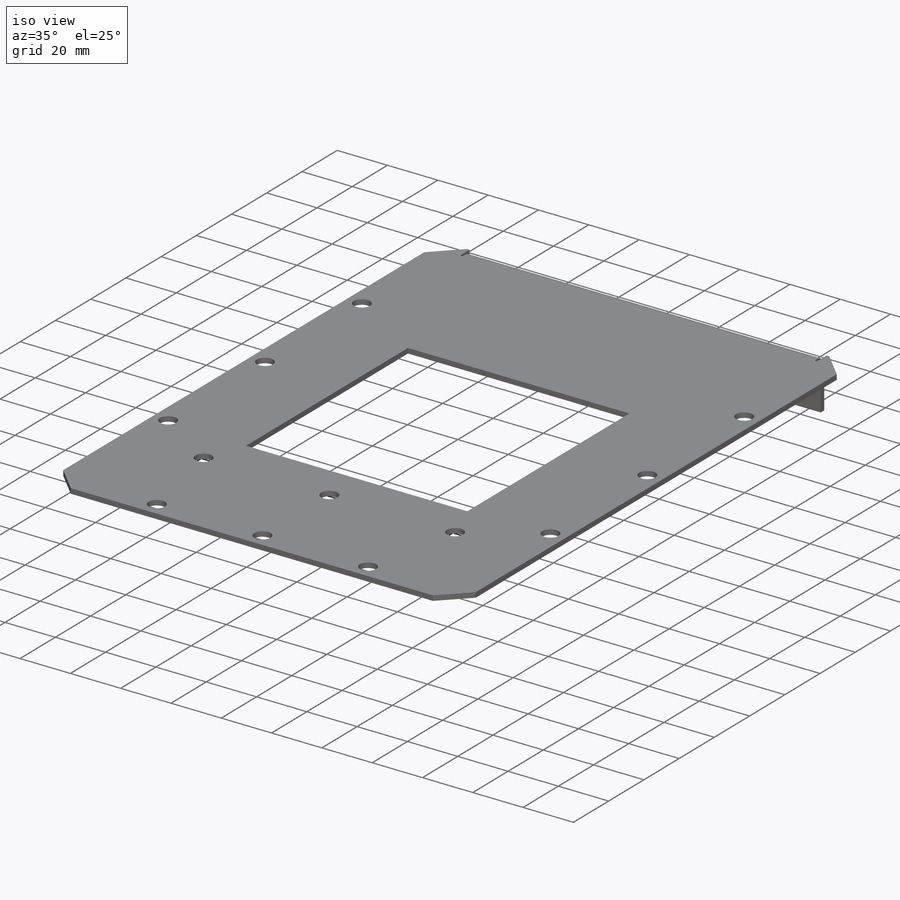
[diagram: iso view]
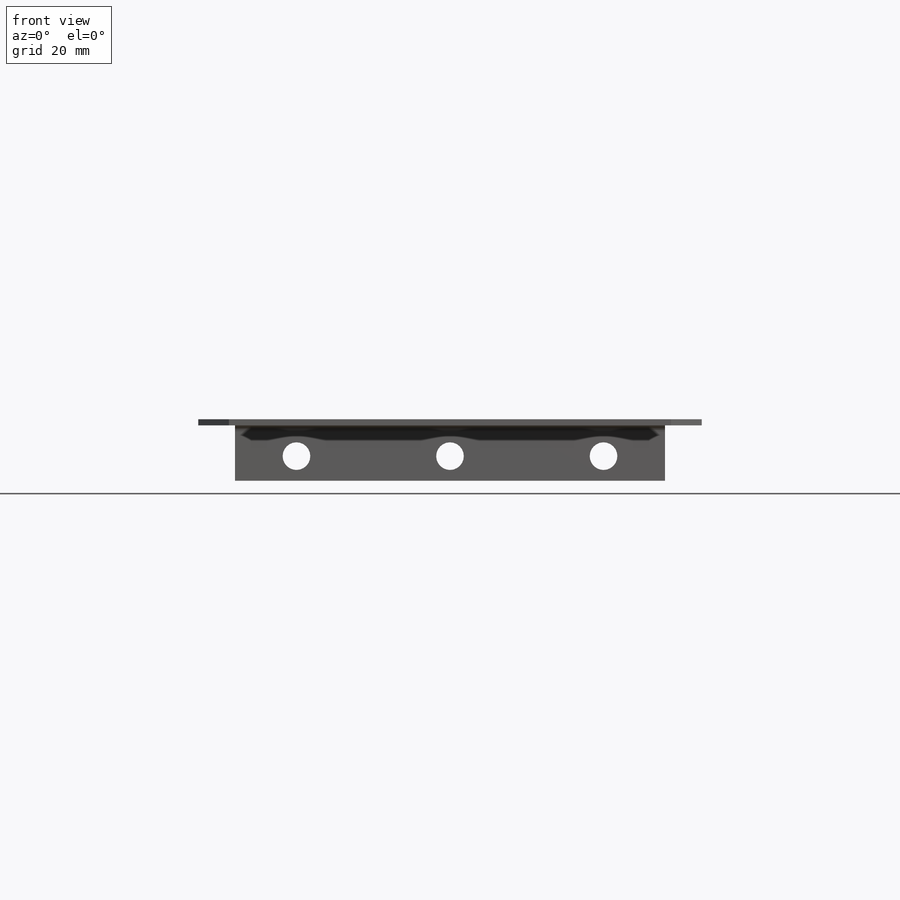
[diagram: front view]
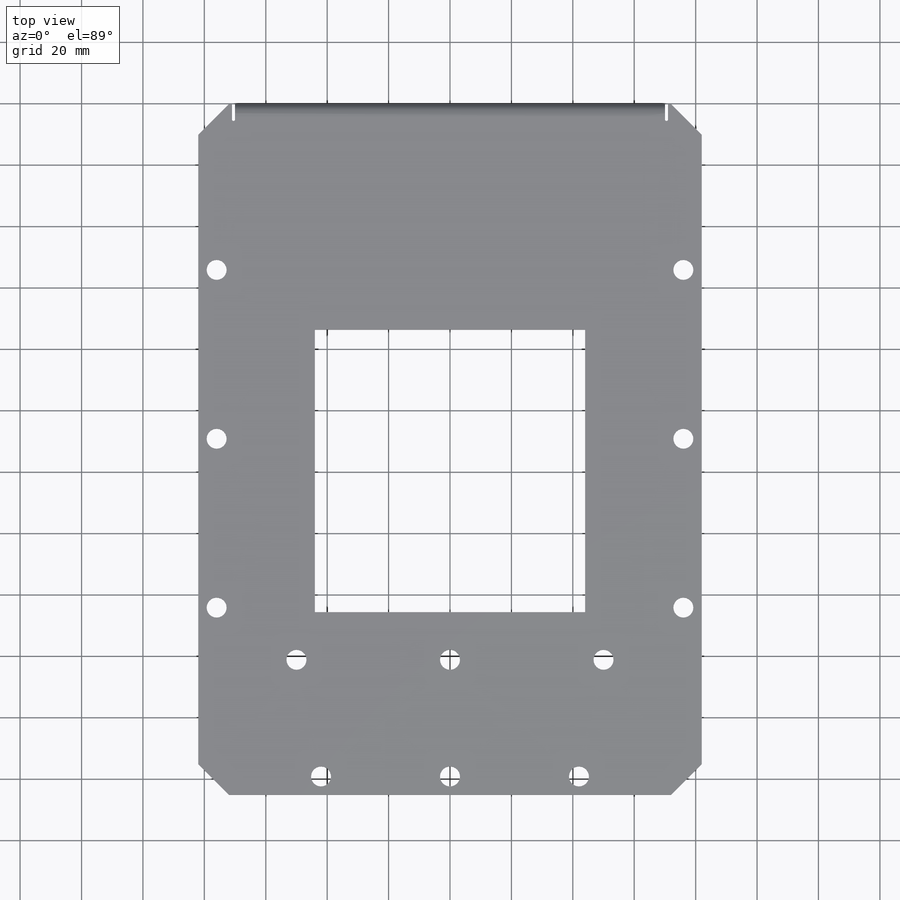
[diagram: top view]
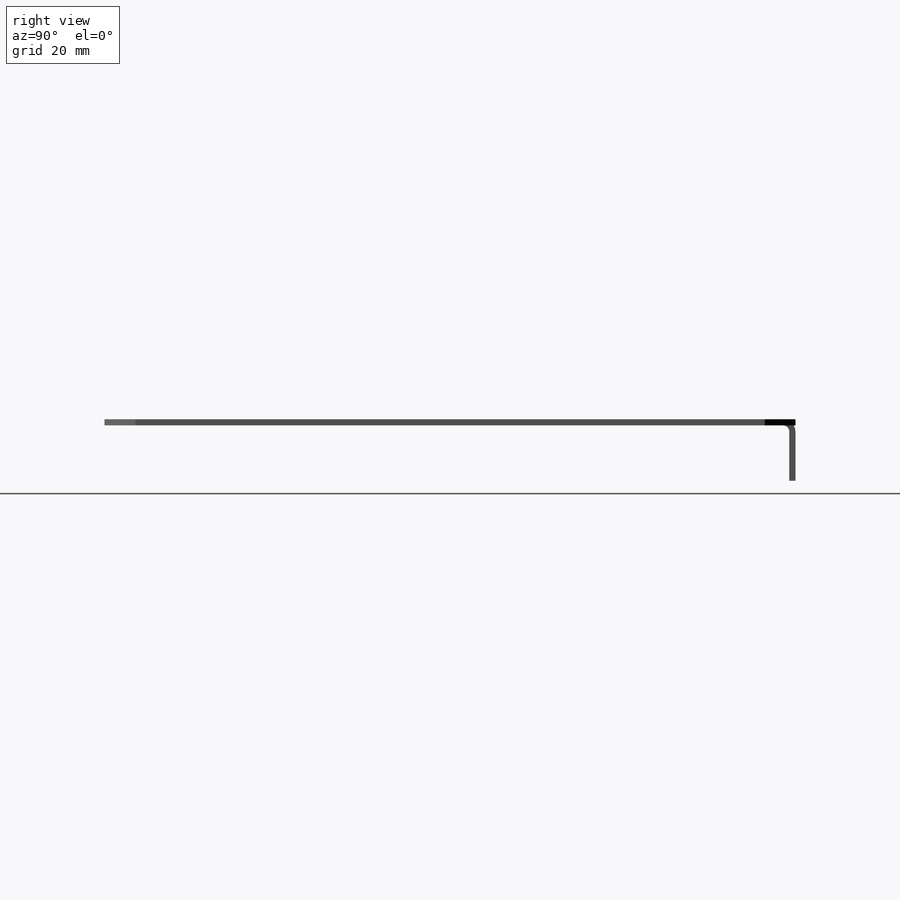
[diagram: right view]
SOLIDWORKS PART (.sldprt)
format: sldprt  version: not decoded by parser v0  size: 276,992 bytes
history: native  units: mm
features: sketch x8, plane x3, sheet_metal_op x2, hole x2, material x1, cut_extrude x1, chamfer x1 + 6 further entries (+9 scaffold rows collapsed)
feature tree (33):
  scaffold x9  (default folders/planes/origin — collapsed)
  material  "Ст 3 ГОСТ 380-2005"
  plane  "Спереди"
  plane  "Сверху"
  plane  "Слева"
  "Начало координат"
  "PTricksFreeParameters"
  "PTricksEqu"
  "PTricksFreeParameters"
  sketch  "Эскиз1"  dims[c1.D1=~65.295715mm c2.D1=105.5mm c2.D2=225.0mm c2.D3=164.0mm]
  sheet_metal_op  "Листовой металл1"  Толщина=2mm
  sheet_metal_op  "Базовая кромка1"
  sketch  "Эскиз5"  dims[c1.D1=140.0mm c2.D1=2.0mm c2.D4=90.0deg c2.D5=1.0 c2.D8=1.0mm c2.D9=1.0mm c3.D1=2.0mm c3.D2=500.0mm c3.D3=0.0mm c3.D6=10.0mm c3.D7=20.0mm]
  hole  "Зенковка для винта с потайной головкой M61"  [1 undecoded]
  sketch  "Эскиз8"  dims[D1=100.0mm]
  sketch  "Эскиз7"  dims[hole-wizard template sketch: 54 standard entries collapsed; hole parameters kept: c17.Диаметр сквозного отверстия=9.0mm c17.Глубина сквозного отверстия=2.0mm c17.Диаметр передней зенковки=12.0mm c17.D4=~3.666174mm c17.Угол передней зенковки=90.0deg]
  sketch  "Эскиз10"  dims[D1=88.0mm D2=92.0mm D3=59.5mm D4=6.0mm D5=61.0mm D6=110.0mm D7=6.0mm D8=44.0mm D9=84.0mm D10=100.0mm]
  hole  "Отверстие с зазором M61"  [1 undecoded]
  sketch  "Трехмерный эскиз1"
  sketch  "Эскиз11"  dims[hole-wizard template sketch: 59 standard entries collapsed; hole parameters kept: c18.Диаметр сквозного отверстия=6.5mm c18.Глубина сквозного отверстия=2.0mm]
  cut_extrude  "Вытянуть1"  [1 undecoded]
  chamfer  "Фаска1"  Distance=10mm Angle=45deg
  "Развертка1"
  sketch  "Сгиб-Линии1"
  "Преобразование эскиза1"
decode coverage: 8 of 14 modeling features carry decoded parameters; 6 rows unclassified (native names shown)
note: ~ marks probable driven/reference dimensions
note: 3 parameter values undecoded
summary: no parameter record found for 3 features
note: suppression state not decoded; provenance and decode notes live in map.json
